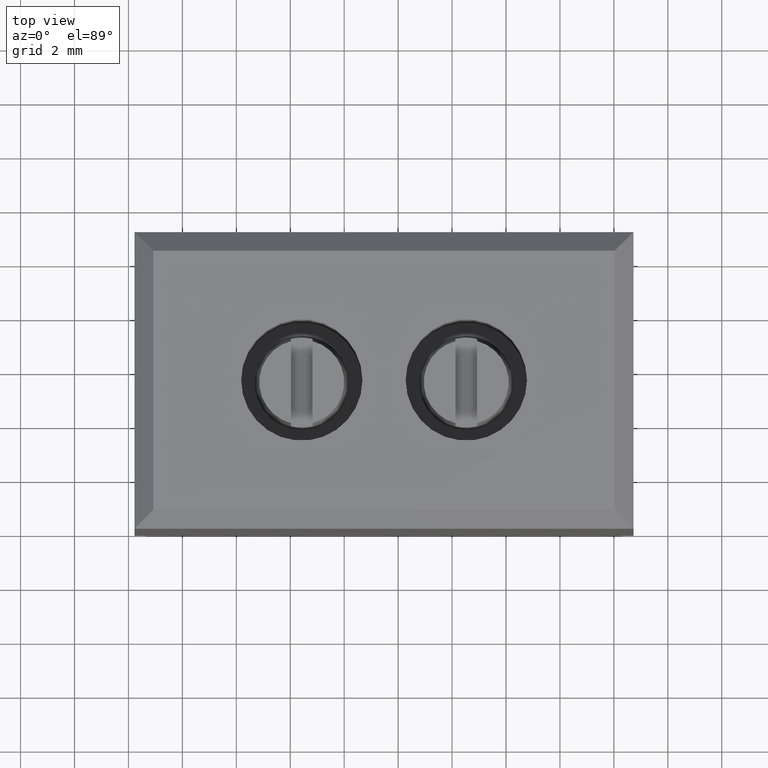
[diagram: clean part render]
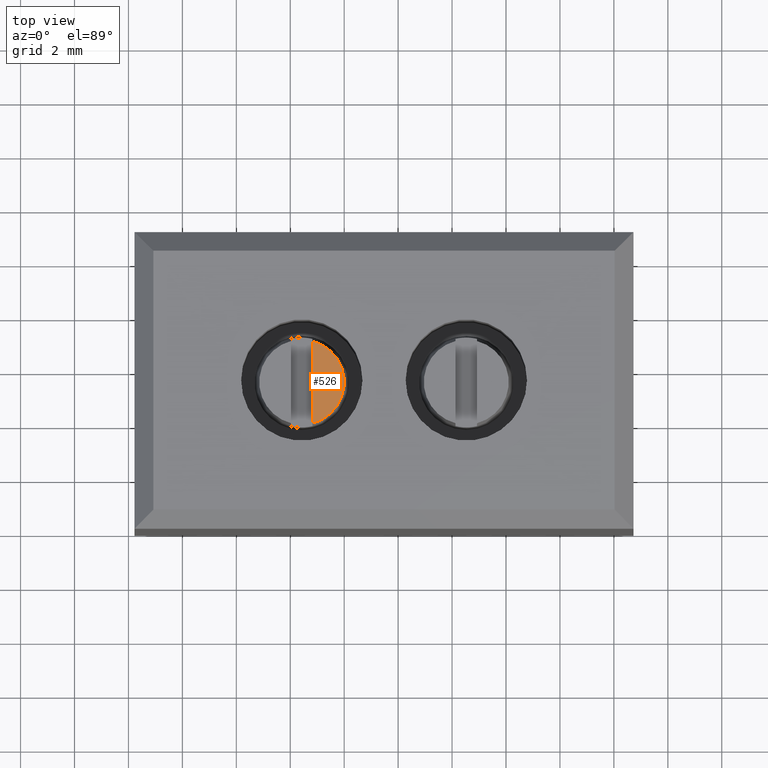
[diagram: same view with one face highlighted and labeled with its STEP entity id]
A machine part, top view. The second image highlights one B-rep face of the part: STEP entity #526.
In plain terms, the highlighted planar face has unit normal (0, 0, 1).
Its self-contained STEP definition (entity closure, byte-faithful):
#150 = EDGE_LOOP ( 'NONE', ( #1928, #1951 ) ) ;
#445 = EDGE_CURVE ( 'NONE', #2213, #2206, #1858, .T. ) ;
#453 = EDGE_CURVE ( 'NONE', #2206, #2213, #1152, .T. ) ;
#526 = ADVANCED_FACE ( 'NONE', ( #742 ), #729, .T. ) ;
#729 = PLANE ( 'NONE',  #1229 ) ;
#738 = CARTESIAN_POINT ( 'NONE',  ( -1.174240686983690300, 5.502552627876998100, 12.27029407890769800 ) ) ;
#742 = FACE_OUTER_BOUND ( 'NONE', #150, .T. ) ;
#749 = DIRECTION ( 'NONE',  ( 0.0000000000000000000, 0.0000000000000000000, 1.000000000000000000 ) ) ;
#765 = DIRECTION ( 'NONE',  ( 0.0000000000000000000, -1.000000000000000000, 0.0000000000000000000 ) ) ;
#1126 = AXIS2_PLACEMENT_3D ( 'NONE', #1890, #1891, #1900 ) ;
#1145 = VECTOR ( 'NONE', #1869, 1000.000000000000000 ) ;
#1152 = CIRCLE ( 'NONE', #1126, 1.575640603189852000 ) ;
#1229 = AXIS2_PLACEMENT_3D ( 'NONE', #738, #749, #765 ) ;
#1495 = CARTESIAN_POINT ( 'NONE',  ( -1.174240686983424100, 3.978530544565709500, 12.27029407890769800 ) ) ;
#1516 = CARTESIAN_POINT ( 'NONE',  ( -1.174240686983425000, 7.026574711188286100, 12.27029407890769800 ) ) ;
#1858 = LINE ( 'NONE', #1870, #1145 ) ;
#1869 = DIRECTION ( 'NONE',  ( -1.150903602276833000E-016, 1.000000000000000000, 0.0000000000000000000 ) ) ;
#1870 = CARTESIAN_POINT ( 'NONE',  ( -1.174240686983424100, 5.502552627876998100, 12.27029407890769800 ) ) ;
#1890 = CARTESIAN_POINT ( 'NONE',  ( -1.574240686983424200, 5.502552627876998100, 12.27029407890769800 ) ) ;
#1891 = DIRECTION ( 'NONE',  ( -0.0000000000000000000, 0.0000000000000000000, -1.000000000000000000 ) ) ;
#1900 = DIRECTION ( 'NONE',  ( 0.0000000000000000000, 1.000000000000000000, 0.0000000000000000000 ) ) ;
#1928 = ORIENTED_EDGE ( 'NONE', *, *, #445, .F. ) ;
#1951 = ORIENTED_EDGE ( 'NONE', *, *, #453, .F. ) ;
#2206 = VERTEX_POINT ( 'NONE', #1516 ) ;
#2213 = VERTEX_POINT ( 'NONE', #1495 ) ;